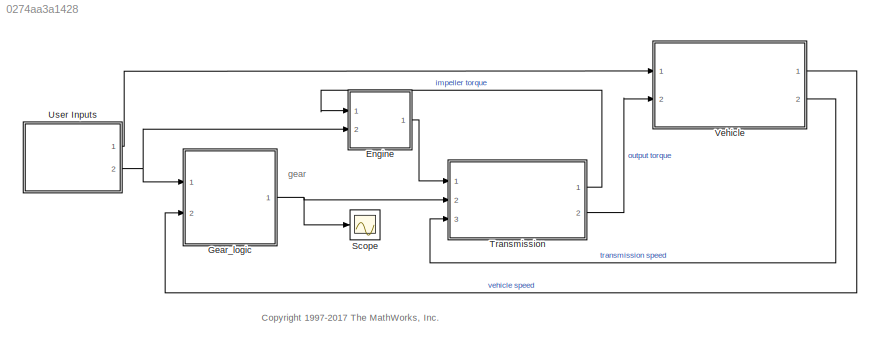
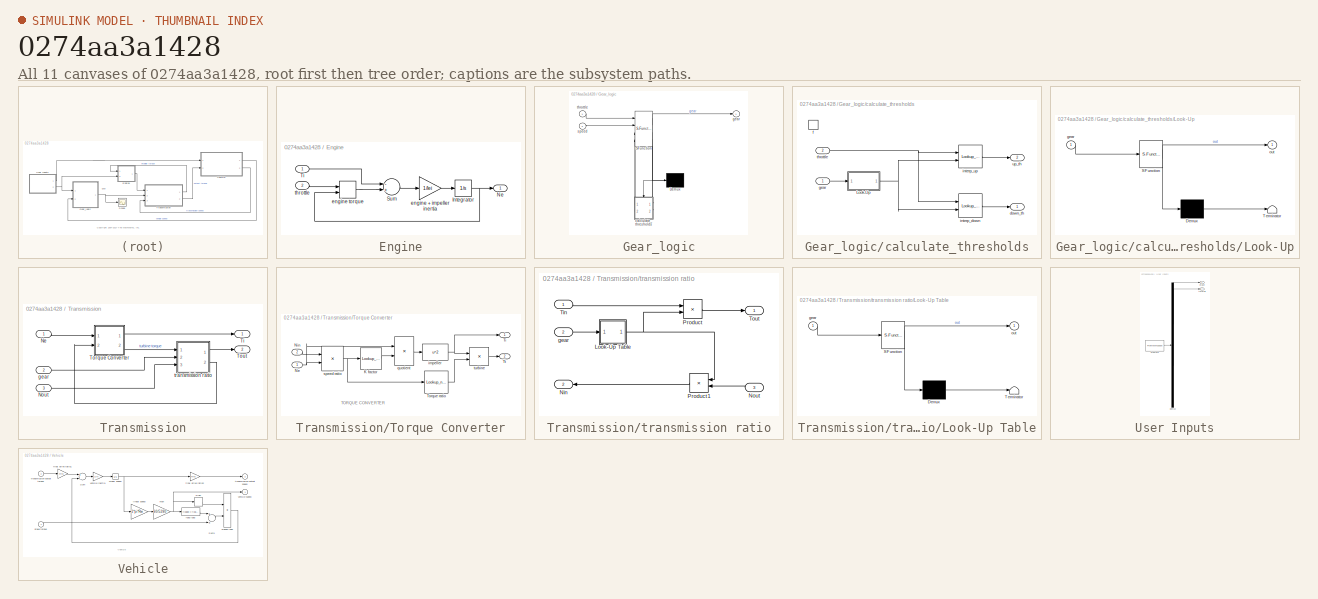
[diagram: thumbnail index - all 11 canvases of the model, root first then tree order]
MODEL slx_0274aa3a1428
KIND model
CONFIG AbsTol = 1e-6
CONFIG EnableMultiTasking = off
CONFIG FixedStep = auto
CONFIG MaxStep = auto
CONFIG MinStep = auto
CONFIG RelTol = 1e-3
CONFIG SampleTimeConstraint = Unconstrained
CONFIG Solver = ode5
CONFIG SolverName = ode5
CONFIG StartTime = 0.0
CONFIG StopTime = 100
WORKSPACE source: MAT-file member
WORKSPACE Iei = 0.0219914882836
BLOCK [SubSystem] Engine
  Ports = [2, 1]
  RequestExecContextInheritance = off
  Variant = off
BLOCK [Integrator] Engine/Integrator
  InitialCondition = 1000
  LimitOutput = on
  LowerSaturationLimit = 600
  Ports = [1, 1]
  UpperSaturationLimit = 6000
  ZeroCross = off
BLOCK [Outport] Engine/Ne
  IconDisplay = Port number
BLOCK [Sum] Engine/Sum
  Inputs = -+
  Ports = [2, 1]
BLOCK [Inport] Engine/Ti
  IconDisplay = Port number
BLOCK [Gain] Engine/engine + impeller inertia
  Gain = 1/Iei
BLOCK [Lookup_n-D] Engine/engine torque
  BreakpointsForDimension1 = thvec
  BreakpointsForDimension2 = nevec
  InternalRulePriority = Speed
  Ports = [2, 1]
  Table = emap
BLOCK [Inport] Engine/throttle
  IconDisplay = Port number
  Port = 2
BLOCK [SubSystem] Gear_logic
  ErrorFcn = Stateflow.Translate.translate
  PermitHierarchicalResolution = ExplicitOnly
  Ports = [2, 1]
  RequestExecContextInheritance = off
  SFBlockType = Chart
  TreatAsAtomicUnit = on
  Variant = off
BLOCK [Demux] Gear_logic/ Demux 
  Outputs = 1
  Ports = [1, 1]
BLOCK [S-Function] Gear_logic/ SFunction 
  EnableBusSupport = off
  FunctionName = sf_sfun
  Parameters = TWAIT
  PortCounts = [4 4]
  Ports = [4, 4]
  SFcnIsStateOwnerBlock = off
  SFunctionDeploymentMode = off
  Tag = Stateflow S-Function sf_car_using_duration 1
BLOCK [Outport] Gear_logic/ gear
  IconDisplay = Port number
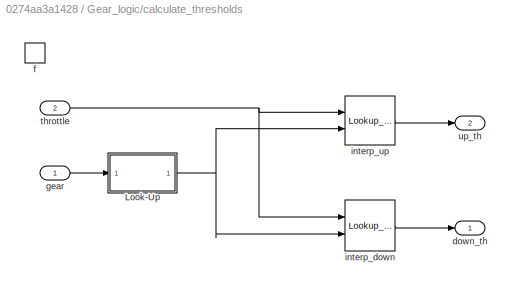
BLOCK [SubSystem] Gear_logic/calculate_thresholds
  Ports = [2, 2, 0, 1]
  PreDeleteFcn = Stateflow.SLINSF.SimulinkMan.removePreDeleteFcn
  RequestExecContextInheritance = off
  UndoDeleteFcn = Stateflow.SLINSF.SimulinkMan.restorePreDeleteFcn
  Variant = off
BLOCK [SubSystem] Gear_logic/calculate_thresholds/Look-Up
  ErrorFcn = Stateflow.Translate.translate
  PermitHierarchicalResolution = ExplicitOnly
  Ports = [1, 1]
  RequestExecContextInheritance = off
  SFBlockType = MATLAB Function
  TreatAsAtomicUnit = on
  Variant = off
BLOCK [Demux] Gear_logic/calculate_thresholds/Look-Up/ Demux 
  Outputs = 1
  Ports = [1, 1]
BLOCK [S-Function] Gear_logic/calculate_thresholds/Look-Up/ SFunction 
  EnableBusSupport = off
  FunctionName = sf_sfun
  PortCounts = [1 2]
  Ports = [1, 2]
  SFcnIsStateOwnerBlock = off
  SFunctionDeploymentMode = off
  Tag = Stateflow S-Function sf_car_using_duration 3
BLOCK [Terminator] Gear_logic/calculate_thresholds/Look-Up/ Terminator 
BLOCK [Inport] Gear_logic/calculate_thresholds/Look-Up/gear
  IconDisplay = Port number
BLOCK [Outport] Gear_logic/calculate_thresholds/Look-Up/out
  IconDisplay = Port number
BLOCK [Outport] Gear_logic/calculate_thresholds/down_th
  IconDisplay = Port number
BLOCK [TriggerPort] Gear_logic/calculate_thresholds/f
  CopyFcn = Stateflow.SLINSF.SimulinkMan.removeBlockPreDeleteFcn
  Ports = []
  PreDeleteFcn = Stateflow.SLINSF.SimulinkMan.unsafePredeleteFcn
  StatesWhenEnabling = held
  TriggerType = function-call
  VariantControl = Variant
BLOCK [Inport] Gear_logic/calculate_thresholds/gear
  IconDisplay = Port number
  OutDataTypeStr = Enum: gearType
  PortDimensions = 1
  SignalType = real
BLOCK [Lookup_n-D] Gear_logic/calculate_thresholds/interp_down
  BreakpointsForDimension1 = downth
  BreakpointsForDimension2 = [1:4]
  Ports = [2, 1]
  Table = downtab
BLOCK [Lookup_n-D] Gear_logic/calculate_thresholds/interp_up
  BreakpointsForDimension1 = upth
  BreakpointsForDimension2 = [1:4]
  Ports = [2, 1]
  Table = uptab
BLOCK [Inport] Gear_logic/calculate_thresholds/throttle
  IconDisplay = Port number
  OutDataTypeStr = double
  Port = 2
  PortDimensions = 1
  SignalType = real
BLOCK [Outport] Gear_logic/calculate_thresholds/up_th
  IconDisplay = Port number
  Port = 2
BLOCK [Inport] Gear_logic/speed
  IconDisplay = Port number
  Port = 2
BLOCK [Inport] Gear_logic/throttle
  IconDisplay = Port number
BLOCK [Scope] Scope
  NumInputPorts = 1
  Ports = [1]
  ScopeSpecificationString = Simulink.scopes.TimeScopeBlockCfg('CurrentConfiguration', extmgr.ConfigurationSet(extmgr.Configuration('Core','General UI',true),extmgr.Configuration('Core','Source UI',true),extmgr.Configuration('Sources','WiredSimulink',true,'DataLoggingLimitDataPoints',true,'DataLoggingSaveFormat','Array','DataLoggingDecimation','1','DataLoggingDecimateData',true,'DataLoggingVariableName','ScopeData1'),extmgr.C...<+1683ch>
BLOCK [SubSystem] Transmission
  Ports = [3, 2]
  RequestExecContextInheritance = off
  Variant = off
BLOCK [Inport] Transmission/Ne
  IconDisplay = Port number
BLOCK [Inport] Transmission/Nout
  IconDisplay = Port number
  Port = 3
BLOCK [Outport] Transmission/Ti
  IconDisplay = Port number
BLOCK [SubSystem] Transmission/Torque Converter
  Ports = [2, 2]
  RequestExecContextInheritance = off
  ShowPortLabels = none
  Variant = off
BLOCK [Lookup_n-D] Transmission/Torque Converter/K factor
  BreakpointsForDimension1 = speedratio
  InternalRulePriority = Speed
  NumberOfTableDimensions = 1
  Ports = [1, 1]
  SaturateOnIntegerOverflow = on
  Table = Kfactor
BLOCK [Inport] Transmission/Torque Converter/Ne
  IconDisplay = Port number
BLOCK [Inport] Transmission/Torque Converter/Nin
  IconDisplay = Port number
  Port = 2
BLOCK [Outport] Transmission/Torque Converter/Ti
  IconDisplay = Port number
BLOCK [Lookup_n-D] Transmission/Torque Converter/Torque ratio
  BreakpointsForDimension1 = speedratio
  InternalRulePriority = Speed
  NumberOfTableDimensions = 1
  Ports = [1, 1]
  SaturateOnIntegerOverflow = on
  Table = Torkratio
BLOCK [Outport] Transmission/Torque Converter/Tt
  IconDisplay = Port number
  Port = 2
BLOCK [Fcn] Transmission/Torque Converter/impeller
  Expr = u^2
BLOCK [Product] Transmission/Torque Converter/quotient
  Inputs = */
  Ports = [2, 1]
  RndMeth = Floor
BLOCK [Product] Transmission/Torque Converter/speed ratio
  Inputs = */
  Ports = [2, 1]
  RndMeth = Floor
BLOCK [Product] Transmission/Torque Converter/turbine
  Ports = [2, 1]
  RndMeth = Floor
BLOCK [Outport] Transmission/Tout
  IconDisplay = Port number
  Port = 2
BLOCK [Inport] Transmission/gear
  IconDisplay = Port number
  Port = 2
BLOCK [SubSystem] Transmission/transmission ratio
  Ports = [3, 2]
  RequestExecContextInheritance = off
  Variant = off
BLOCK [SubSystem] Transmission/transmission ratio/Look-Up Table
  ErrorFcn = Stateflow.Translate.translate
  PermitHierarchicalResolution = ExplicitOnly
  Ports = [1, 1]
  RequestExecContextInheritance = off
  SFBlockType = MATLAB Function
  TreatAsAtomicUnit = on
  Variant = off
BLOCK [Demux] Transmission/transmission ratio/Look-Up Table/ Demux 
  Outputs = 1
  Ports = [1, 1]
BLOCK [S-Function] Transmission/transmission ratio/Look-Up Table/ SFunction 
  EnableBusSupport = off
  FunctionName = sf_sfun
  PortCounts = [1 2]
  Ports = [1, 2]
  SFcnIsStateOwnerBlock = off
  SFunctionDeploymentMode = off
  Tag = Stateflow S-Function sf_car_using_duration 2
BLOCK [Terminator] Transmission/transmission ratio/Look-Up Table/ Terminator 
BLOCK [Inport] Transmission/transmission ratio/Look-Up Table/gear
  IconDisplay = Port number
BLOCK [Outport] Transmission/transmission ratio/Look-Up Table/out
  IconDisplay = Port number
BLOCK [Outport] Transmission/transmission ratio/Nin
  IconDisplay = Port number
  Port = 2
BLOCK [Inport] Transmission/transmission ratio/Nout
  IconDisplay = Port number
  Port = 3
BLOCK [Product] Transmission/transmission ratio/Product
  Ports = [2, 1]
  RndMeth = Floor
BLOCK [Product] Transmission/transmission ratio/Product1
  Ports = [2, 1]
  RndMeth = Floor
BLOCK [Inport] Transmission/transmission ratio/Tin
  IconDisplay = Port number
BLOCK [Outport] Transmission/transmission ratio/Tout
  IconDisplay = Port number
BLOCK [Inport] Transmission/transmission ratio/gear
  IconDisplay = Port number
  Port = 2
BLOCK [SubSystem] User Inputs
  ClipboardFcn = sigbuilder_block('clipboard');
  CloseFcn = sigbuilder_block('close');
  ContinueFcn = sigbuilder_block('continue')
  CopyFcn = sigbuilder_block('copy');
  DeleteFcn = sigbuilder_block('delete');
  LoadFcn = sigbuilder_block('load');
  MaskHideContents = on
  ModelCloseFcn = sigbuilder_block('modelClose');
  NameChangeFcn = sigbuilder_block('namechange');
  OpenFcn = sigbuilder_block('open',[218.25 120 450.75 315.75 ]);
  PauseFcn = sigbuilder_block('pause')
  Ports = [0, 2]
  PreSaveFcn = sigbuilder_block('preSave');
  RequestExecContextInheritance = off
  StartFcn = sigbuilder_block('start');
  StopFcn = sigbuilder_block('stop');
  Tag = STV Subsys
  Variant = off
BLOCK [Demux] User Inputs/Demux
  Outputs = 2
  Ports = [1, 2]
  Tag = STV Demux
BLOCK [FromWorkspace] User Inputs/FromWs
  SampleTime = 0
  Tag = STV FromWs
  VariableName = tuvar
BLOCK [Outport] User Inputs/brake
  IconDisplay = Port number
  Tag = STV Outport
BLOCK [Outport] User Inputs/throttle
  IconDisplay = Port number
  Port = 2
  Tag = STV Outport
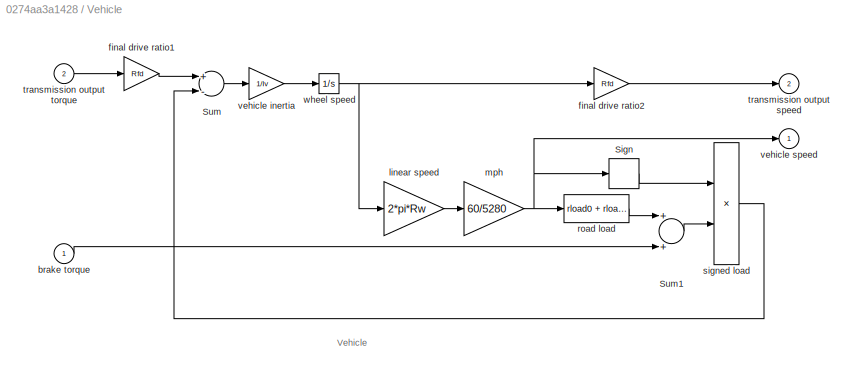
BLOCK [SubSystem] Vehicle
  Ports = [2, 2]
  RequestExecContextInheritance = off
  ShowPortLabels = none
  Variant = off
BLOCK [Signum] Vehicle/Sign
BLOCK [Sum] Vehicle/Sum
  Inputs = +-
  Ports = [2, 1]
BLOCK [Sum] Vehicle/Sum1
  Ports = [2, 1]
BLOCK [Inport] Vehicle/brake torque
  IconDisplay = Port number
BLOCK [Gain] Vehicle/final drive ratio1
  Gain = Rfd
BLOCK [Gain] Vehicle/final drive ratio2
  Gain = Rfd
BLOCK [Gain] Vehicle/linear speed
  Gain = 2*pi*Rw
BLOCK [Gain] Vehicle/mph
  Gain = 60/5280
BLOCK [Fcn] Vehicle/road load
  Expr = rload0 + rload2*u^2
BLOCK [Product] Vehicle/signed load
  Ports = [2, 1]
  RndMeth = Floor
BLOCK [Outport] Vehicle/transmission output speed
  IconDisplay = Port number
  Port = 2
BLOCK [Inport] Vehicle/transmission output torque
  IconDisplay = Port number
  Port = 2
BLOCK [Gain] Vehicle/vehicle inertia
  Gain = 1/Iv
BLOCK [Outport] Vehicle/vehicle speed
  IconDisplay = Port number
BLOCK [Integrator] Vehicle/wheel speed
  InitialCondition = N20/Rfd
  Ports = [1, 1]
  ZeroCross = off
ANNOTATION (root): <copyright redacted>
ANNOTATION (root): gear
ANNOTATION Transmission/Torque Converter: TORQUE CONVERTER
ANNOTATION Vehicle: Vehicle
NET Engine/Integrator:1 -> Engine/Ne:1, Engine/engine torque:2
LINE Engine/Sum:1 -> Engine/engine + impeller inertia:1
LINE Engine/Ti:1 -> Engine/Sum:1
LINE Engine/engine + impeller inertia:1 -> Engine/Integrator:1
LINE Engine/engine torque:1 -> Engine/Sum:2
LINE Engine/throttle:1 -> Engine/engine torque:1
LINE Engine:1 -> Transmission:1
NET Gear_logic:1 -> Scope:1, Transmission:2
LINE Transmission/Ne:1 -> Transmission/Torque Converter:1
LINE Transmission/Nout:1 -> Transmission/transmission ratio:3
LINE Transmission/Torque Converter/K factor:1 -> Transmission/Torque Converter/quotient:2
NET Transmission/Torque Converter/Ne:1 -> Transmission/Torque Converter/quotient:1, Transmission/Torque Converter/speed ratio:2
LINE Transmission/Torque Converter/Nin:1 -> Transmission/Torque Converter/speed ratio:1
LINE Transmission/Torque Converter/Torque ratio:1 -> Transmission/Torque Converter/turbine:2
NET Transmission/Torque Converter/impeller:1 -> Transmission/Torque Converter/Ti:1, Transmission/Torque Converter/turbine:1
LINE Transmission/Torque Converter/quotient:1 -> Transmission/Torque Converter/impeller:1
NET Transmission/Torque Converter/speed ratio:1 -> Transmission/Torque Converter/K factor:1, Transmission/Torque Converter/Torque ratio:1
LINE Transmission/Torque Converter/turbine:1 -> Transmission/Torque Converter/Tt:1
LINE Transmission/Torque Converter:1 -> Transmission/Ti:1
LINE Transmission/Torque Converter:2 -> Transmission/transmission ratio:1
LINE Transmission/gear:1 -> Transmission/transmission ratio:2
NET Transmission/transmission ratio/Look-Up Table:1 -> Transmission/transmission ratio/Product1:1, Transmission/transmission ratio/Product:2
LINE Transmission/transmission ratio/Nout:1 -> Transmission/transmission ratio/Product1:2
LINE Transmission/transmission ratio/Product1:1 -> Transmission/transmission ratio/Nin:1
LINE Transmission/transmission ratio/Product:1 -> Transmission/transmission ratio/Tout:1
LINE Transmission/transmission ratio/Tin:1 -> Transmission/transmission ratio/Product:1
LINE Transmission/transmission ratio/gear:1 -> Transmission/transmission ratio/Look-Up Table:1
LINE Transmission/transmission ratio:1 -> Transmission/Tout:1
LINE Transmission/transmission ratio:2 -> Transmission/Torque Converter:2
LINE Transmission:1 -> Engine:1
LINE Transmission:2 -> Vehicle:2
LINE User Inputs/Demux:1 -> User Inputs/brake:1
LINE User Inputs/Demux:2 -> User Inputs/throttle:1
LINE User Inputs/FromWs:1 -> User Inputs/Demux:1
LINE User Inputs:1 -> Vehicle:1
NET User Inputs:2 -> Engine:2, Gear_logic:1
LINE Vehicle/Sign:1 -> Vehicle/signed load:1
LINE Vehicle/Sum1:1 -> Vehicle/signed load:2
LINE Vehicle/Sum:1 -> Vehicle/vehicle inertia:1
LINE Vehicle/brake torque:1 -> Vehicle/Sum1:2
LINE Vehicle/final drive ratio1:1 -> Vehicle/Sum:1
LINE Vehicle/final drive ratio2:1 -> Vehicle/transmission output speed:1
LINE Vehicle/linear speed:1 -> Vehicle/mph:1
NET Vehicle/mph:1 -> Vehicle/Sign:1, Vehicle/road load:1, Vehicle/vehicle speed:1
LINE Vehicle/road load:1 -> Vehicle/Sum1:1
LINE Vehicle/signed load:1 -> Vehicle/Sum:2
LINE Vehicle/transmission output torque:1 -> Vehicle/final drive ratio1:1
LINE Vehicle/vehicle inertia:1 -> Vehicle/wheel speed:1
NET Vehicle/wheel speed:1 -> Vehicle/final drive ratio2:1, Vehicle/linear speed:1
LINE Vehicle:1 -> Gear_logic:2
LINE Vehicle:2 -> Transmission:3
note: NET lines group one-source signal fan-out (src -> all destinations, sorted); 1:1 wires keep LINE
CHART Gear_logic states=6 transitions=7
  STATE_LABEL 'gear\nen,du:\n[down_threshold,up_threshold] = calculate_thresholds(gear,throttle);\nup = duration(speed >= up_threshold) > TWAIT;\ndown = duration(speed <= down_threshold) > TWAIT;'
  STATE_LABEL 'first\n'
  STATE_LABEL 'second\n'
  STATE_LABEL 'third\n'
  STATE_LABEL 'fourth\n'
  STATE_LABEL '[up]'
  STATE_LABEL '[up]'
  STATE_LABEL '[up]'
  STATE_LABEL '[down]'
  STATE_LABEL '[down]'
  STATE_LABEL '[down]'
  STATE_LABEL 'first\n'
  STATE_LABEL 'second\n'
  STATE_LABEL 'third\n'
  STATE_LABEL 'fourth\n'
  STATE_LABEL '[down_th,up_th] = calculate_thresholds(gear,throttle)'
CHART Transmission/transmission
ratio/Look-Up
Table states=1 transitions=1
  STATE_LABEL 'eML_blk_kernel()'
  STATE_LABEL 'SCRIPT:\nfunction out = fcn(gear)\n    %#codegen\n    table = [2.393 1.450 1.000 0.677];\n    switch(gear)\n        case gearType.fourth;\n            out=table(4);        \n        case gearType.third;\n            out=table(3);            \n        case gearType.second;\n            out=table(2);\n        otherwise; % gearType.first\n            out=table(1);\n    end\n    \nend\n'
CHART Gear_logic/calculate_thresholds/Look-Up states=1 transitions=1
  STATE_LABEL 'eML_blk_kernel()'
  STATE_LABEL 'SCRIPT:\nfunction out = fcn(gear)\n    %#codegen\n    table = [1 2 3 4];\n    switch(gear)\n        case gearType.fourth;\n            out=table(4);        \n        case gearType.third;\n            out=table(3);\n        case gearType.second;\n            out=table(2);            \n        otherwise; % gearType.first\n            out=table(1);\n    end\n    \nend\n'
